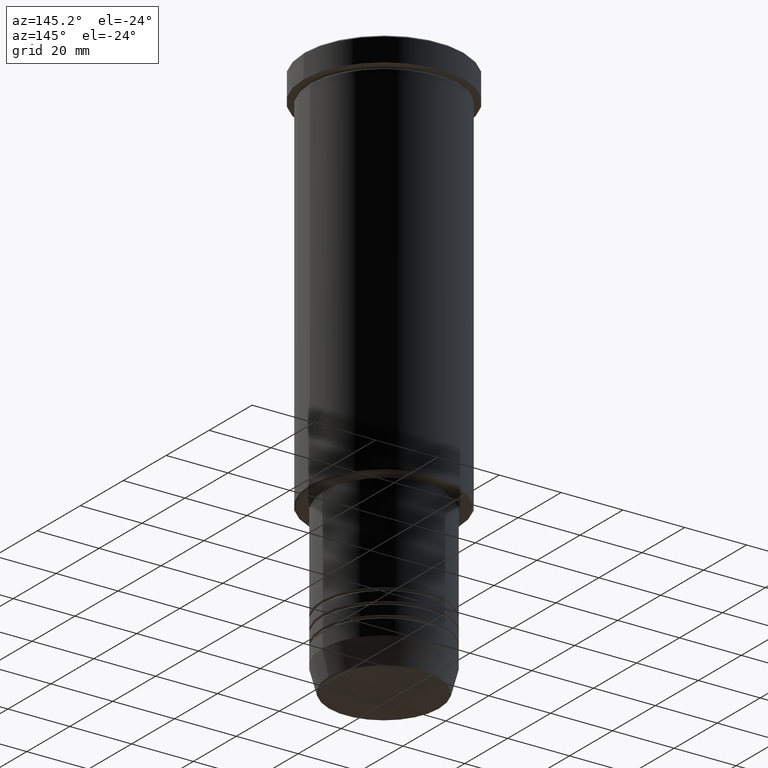
[diagram: clean part render]
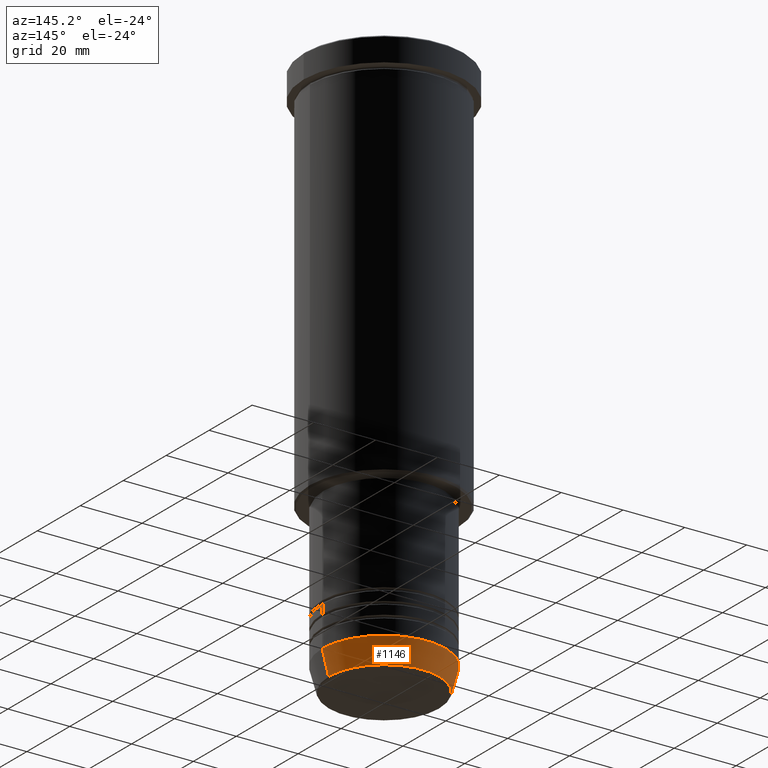
[diagram: same view with one face highlighted and labeled with its STEP entity id]
A machine part, auxiliary view. The second image highlights one B-rep face of the part: STEP entity #1146.
In plain terms, the highlighted conical surface has half-angle 15 deg.
Its self-contained STEP definition (entity closure, byte-faithful):
#17 = LINE ( 'NONE', #852, #317 ) ;
#24 = CONICAL_SURFACE ( 'NONE', #227, 20.00000000000000355, 0.2617993877991500740 ) ;
#38 = AXIS2_PLACEMENT_3D ( 'NONE', #566, #678, #221 ) ;
#69 = CARTESIAN_POINT ( 'NONE',  ( 0.000000000000000000, 0.000000000000000000, -172.0000000000000000 ) ) ;
#88 = ORIENTED_EDGE ( 'NONE', *, *, #327, .F. ) ;
#166 = DIRECTION ( 'NONE',  ( -0.000000000000000000, -0.000000000000000000, 1.000000000000000000 ) ) ;
#184 = VECTOR ( 'NONE', #713, 1000.000000000000000 ) ;
#221 = DIRECTION ( 'NONE',  ( 1.000000000000000000, 0.000000000000000000, 0.000000000000000000 ) ) ;
#227 = AXIS2_PLACEMENT_3D ( 'NONE', #69, #166, #806 ) ;
#229 = EDGE_CURVE ( 'NONE', #1103, #705, #905, .T. ) ;
#264 = ORIENTED_EDGE ( 'NONE', *, *, #902, .T. ) ;
#273 = CARTESIAN_POINT ( 'NONE',  ( 17.95570587970607690, 0.000000000000000000, -179.6294095225512706 ) ) ;
#290 = VERTEX_POINT ( 'NONE', #273 ) ;
#317 = VECTOR ( 'NONE', #377, 1000.000000000000000 ) ;
#327 = EDGE_CURVE ( 'NONE', #486, #705, #817, .T. ) ;
#352 = ORIENTED_EDGE ( 'NONE', *, *, #381, .F. ) ;
#377 = DIRECTION ( 'NONE',  ( 0.2588190451025213501, 0.000000000000000000, 0.9659258262890680902 ) ) ;
#381 = EDGE_CURVE ( 'NONE', #290, #486, #17, .T. ) ;
#384 = DIRECTION ( 'NONE',  ( 1.000000000000000000, 0.000000000000000000, 0.000000000000000000 ) ) ;
#440 = CARTESIAN_POINT ( 'NONE',  ( -20.00000000000000355, 2.449293598294706907E-15, -172.0000000000000000 ) ) ;
#469 = CARTESIAN_POINT ( 'NONE',  ( 0.000000000000000000, 0.000000000000000000, -179.6294095225512706 ) ) ;
#471 = ORIENTED_EDGE ( 'NONE', *, *, #229, .T. ) ;
#486 = VERTEX_POINT ( 'NONE', #1151 ) ;
#566 = CARTESIAN_POINT ( 'NONE',  ( 0.000000000000000000, 0.000000000000000000, -172.0000000000000000 ) ) ;
#650 = CIRCLE ( 'NONE', #1053, 17.95570587970607690 ) ;
#678 = DIRECTION ( 'NONE',  ( -0.000000000000000000, -0.000000000000000000, 1.000000000000000000 ) ) ;
#690 = EDGE_LOOP ( 'NONE', ( #264, #471, #88, #352 ) ) ;
#705 = VERTEX_POINT ( 'NONE', #807 ) ;
#713 = DIRECTION ( 'NONE',  ( -0.2588190451025213501, 3.169619151431772337E-17, 0.9659258262890680902 ) ) ;
#806 = DIRECTION ( 'NONE',  ( 1.000000000000000000, 0.000000000000000000, 0.000000000000000000 ) ) ;
#807 = CARTESIAN_POINT ( 'NONE',  ( -20.00000000000000355, 2.449293598294706907E-15, -172.0000000000000000 ) ) ;
#817 = CIRCLE ( 'NONE', #38, 20.00000000000000355 ) ;
#844 = DIRECTION ( 'NONE',  ( -0.000000000000000000, -0.000000000000000000, 1.000000000000000000 ) ) ;
#852 = CARTESIAN_POINT ( 'NONE',  ( 20.00000000000000355, 0.000000000000000000, -172.0000000000000000 ) ) ;
#890 = FACE_OUTER_BOUND ( 'NONE', #690, .T. ) ;
#902 = EDGE_CURVE ( 'NONE', #290, #1103, #650, .T. ) ;
#905 = LINE ( 'NONE', #440, #184 ) ;
#982 = CARTESIAN_POINT ( 'NONE',  ( -17.95570587970607690, 2.324116685748021371E-15, -179.6294095225512706 ) ) ;
#1053 = AXIS2_PLACEMENT_3D ( 'NONE', #469, #844, #384 ) ;
#1103 = VERTEX_POINT ( 'NONE', #982 ) ;
#1146 = ADVANCED_FACE ( 'NONE', ( #890 ), #24, .T. ) ;
#1151 = CARTESIAN_POINT ( 'NONE',  ( 20.00000000000000355, 0.000000000000000000, -172.0000000000000000 ) ) ;